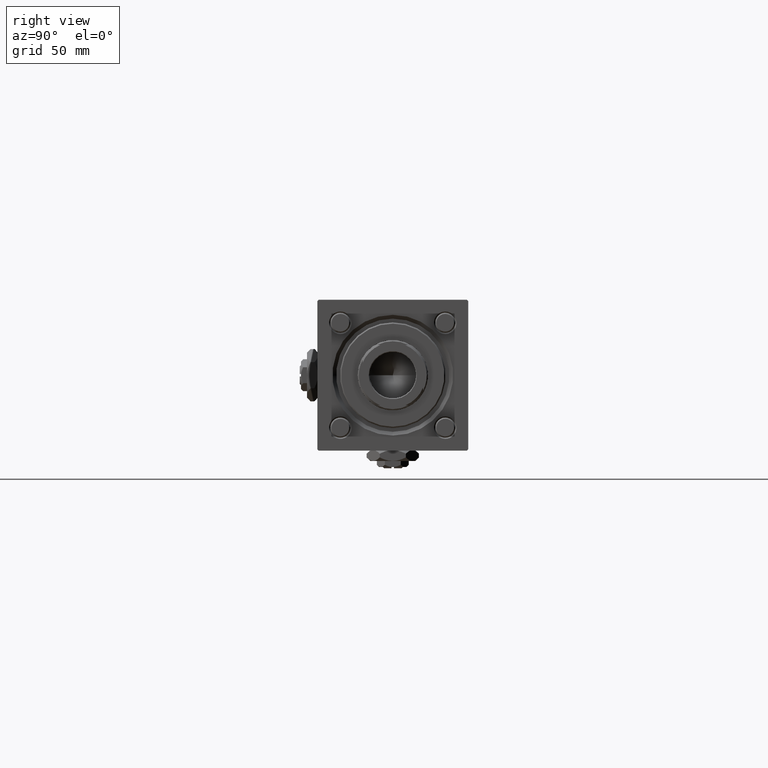
[diagram: clean part render]
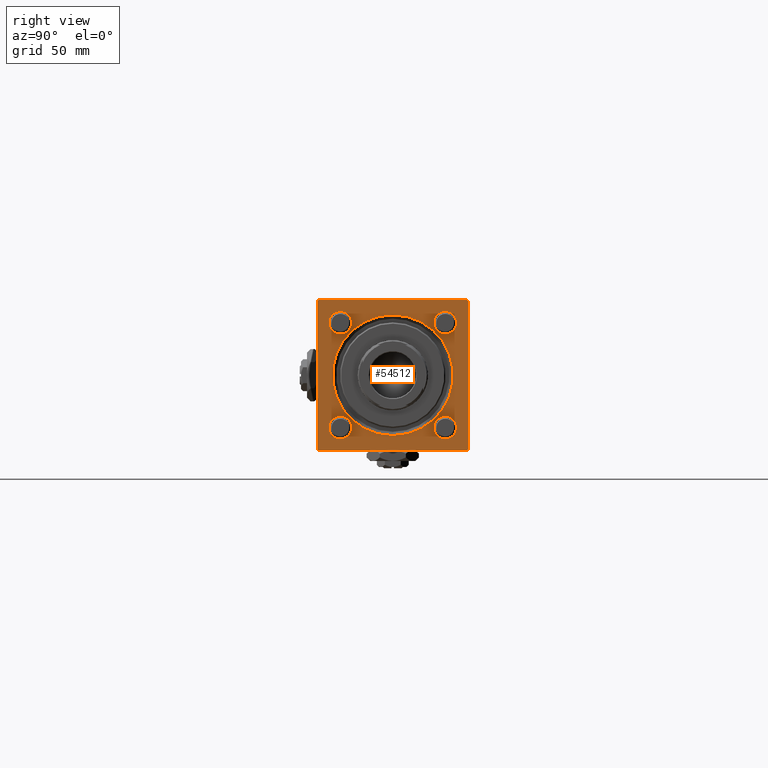
[diagram: same view with one face highlighted and labeled with its STEP entity id]
A machine part, right view. The second image highlights one B-rep face of the part: STEP entity #54512.
In plain terms, the highlighted planar face has unit normal (-1, 0, 0).
Its self-contained STEP definition (entity closure, byte-faithful):
#330 = DIRECTION ( 'NONE',  ( -1.000000000000000000, 0.000000000000000000, -0.000000000000000000 ) ) ;
#515 = VERTEX_POINT ( 'NONE', #48629 ) ;
#545 = CARTESIAN_POINT ( 'NONE',  ( 228.0000000000000000, 30.00000000000000000, 30.00000000000000000 ) ) ;
#1881 = EDGE_CURVE ( 'NONE', #13968, #4111, #19625, .T. ) ;
#2708 = DIRECTION ( 'NONE',  ( -1.000000000000000000, 0.000000000000000000, -0.000000000000000000 ) ) ;
#2725 = VERTEX_POINT ( 'NONE', #35676 ) ;
#3130 = DIRECTION ( 'NONE',  ( -1.000000000000000000, 0.000000000000000000, -0.000000000000000000 ) ) ;
#3354 = VERTEX_POINT ( 'NONE', #32952 ) ;
#3560 = VECTOR ( 'NONE', #31084, 1000.000000000000000 ) ;
#3709 = CARTESIAN_POINT ( 'NONE',  ( 228.0000000000000000, 20.84999999999999787, 25.35000000000000497 ) ) ;
#3905 = AXIS2_PLACEMENT_3D ( 'NONE', #6606, #38728, #29805 ) ;
#4111 = VERTEX_POINT ( 'NONE', #43663 ) ;
#4115 = DIRECTION ( 'NONE',  ( -1.000000000000000000, 0.000000000000000000, -0.000000000000000000 ) ) ;
#4321 = DIRECTION ( 'NONE',  ( 0.000000000000000000, 0.000000000000000000, 1.000000000000000000 ) ) ;
#4556 = EDGE_CURVE ( 'NONE', #49867, #6866, #8473, .T. ) ;
#5135 = CARTESIAN_POINT ( 'NONE',  ( 228.0000000000000000, -20.84999999999999076, 25.35000000000000853 ) ) ;
#5372 = DIRECTION ( 'NONE',  ( 0.000000000000000000, 0.000000000000000000, 1.000000000000000000 ) ) ;
#5391 = CARTESIAN_POINT ( 'NONE',  ( 228.0000000000000000, -30.00000000000000000, -29.49999999999998579 ) ) ;
#5453 = AXIS2_PLACEMENT_3D ( 'NONE', #44054, #2708, #35423 ) ;
#5646 = VERTEX_POINT ( 'NONE', #7571 ) ;
#5667 = CIRCLE ( 'NONE', #22779, 4.500000000000003553 ) ;
#6125 = CARTESIAN_POINT ( 'NONE',  ( 228.0000000000000000, -20.84999999999999076, -20.85000000000000497 ) ) ;
#6416 = DIRECTION ( 'NONE',  ( -1.000000000000000000, 0.000000000000000000, -0.000000000000000000 ) ) ;
#6606 = CARTESIAN_POINT ( 'NONE',  ( 228.0000000000000000, 20.84999999999999787, -20.85000000000000142 ) ) ;
#6713 = DIRECTION ( 'NONE',  ( 0.000000000000000000, 0.000000000000000000, 1.000000000000000000 ) ) ;
#6866 = VERTEX_POINT ( 'NONE', #14010 ) ;
#7085 = DIRECTION ( 'NONE',  ( 0.000000000000000000, 0.000000000000000000, -1.000000000000000000 ) ) ;
#7571 = CARTESIAN_POINT ( 'NONE',  ( 228.0000000000000000, -20.84999999999999076, 16.35000000000000142 ) ) ;
#8047 = ORIENTED_EDGE ( 'NONE', *, *, #41834, .T. ) ;
#8425 = EDGE_LOOP ( 'NONE', ( #30546, #32557 ) ) ;
#8473 = LINE ( 'NONE', #12923, #3560 ) ;
#8576 = CARTESIAN_POINT ( 'NONE',  ( 228.0000000000000000, 0.000000000000000000, 0.000000000000000000 ) ) ;
#8628 = AXIS2_PLACEMENT_3D ( 'NONE', #8576, #4115, #50231 ) ;
#8874 = FACE_BOUND ( 'NONE', #24887, .T. ) ;
#8895 = DIRECTION ( 'NONE',  ( 0.000000000000000000, 0.000000000000000000, -1.000000000000000000 ) ) ;
#9240 = CIRCLE ( 'NONE', #24432, 23.99999999999999645 ) ;
#9415 = VECTOR ( 'NONE', #19756, 1000.000000000000000 ) ;
#9615 = AXIS2_PLACEMENT_3D ( 'NONE', #34950, #3130, #11167 ) ;
#9963 = VERTEX_POINT ( 'NONE', #34828 ) ;
#10440 = EDGE_CURVE ( 'NONE', #9963, #57841, #24221, .T. ) ;
#10509 = DIRECTION ( 'NONE',  ( 0.000000000000000000, -1.000000000000000000, -1.156482317317871478E-16 ) ) ;
#10630 = CIRCLE ( 'NONE', #41042, 23.99999999999999645 ) ;
#10638 = VERTEX_POINT ( 'NONE', #5135 ) ;
#10765 = ORIENTED_EDGE ( 'NONE', *, *, #24808, .T. ) ;
#10802 = LINE ( 'NONE', #25073, #43310 ) ;
#11167 = DIRECTION ( 'NONE',  ( 0.000000000000000000, 0.000000000000000000, 1.000000000000000000 ) ) ;
#11946 = VECTOR ( 'NONE', #10509, 1000.000000000000000 ) ;
#12225 = EDGE_CURVE ( 'NONE', #52519, #57841, #18399, .T. ) ;
#12923 = CARTESIAN_POINT ( 'NONE',  ( 228.0000000000000000, -29.50000000000002487, -30.00000000000000000 ) ) ;
#12947 = CARTESIAN_POINT ( 'NONE',  ( 228.0000000000000000, 29.50000000000002487, 30.00000000000000000 ) ) ;
#13810 = CARTESIAN_POINT ( 'NONE',  ( 228.0000000000000000, -20.84999999999999076, 20.85000000000000497 ) ) ;
#13825 = ORIENTED_EDGE ( 'NONE', *, *, #49640, .T. ) ;
#13968 = VERTEX_POINT ( 'NONE', #40802 ) ;
#13976 = ORIENTED_EDGE ( 'NONE', *, *, #41294, .T. ) ;
#13979 = CIRCLE ( 'NONE', #5453, 4.500000000000003553 ) ;
#14010 = CARTESIAN_POINT ( 'NONE',  ( 228.0000000000000000, -29.50000000000002487, -30.00000000000000000 ) ) ;
#14185 = FACE_BOUND ( 'NONE', #14860, .T. ) ;
#14245 = ORIENTED_EDGE ( 'NONE', *, *, #1881, .T. ) ;
#14860 = EDGE_LOOP ( 'NONE', ( #31514, #8047 ) ) ;
#14869 = CARTESIAN_POINT ( 'NONE',  ( 228.0000000000000000, 0.000000000000000000, 0.000000000000000000 ) ) ;
#15847 = CARTESIAN_POINT ( 'NONE',  ( 228.0000000000000000, 30.00000000000000000, -29.99999999999999289 ) ) ;
#15885 = EDGE_CURVE ( 'NONE', #4111, #49867, #47567, .T. ) ;
#17914 = DIRECTION ( 'NONE',  ( -1.000000000000000000, 0.000000000000000000, -0.000000000000000000 ) ) ;
#18270 = ORIENTED_EDGE ( 'NONE', *, *, #57295, .T. ) ;
#18399 = LINE ( 'NONE', #545, #57081 ) ;
#18465 = CARTESIAN_POINT ( 'NONE',  ( 228.0000000000000000, 20.84999999999999787, 20.85000000000000142 ) ) ;
#19156 = DIRECTION ( 'NONE',  ( -1.000000000000000000, 0.000000000000000000, -0.000000000000000000 ) ) ;
#19625 = LINE ( 'NONE', #33017, #30988 ) ;
#19756 = DIRECTION ( 'NONE',  ( -0.000000000000000000, 0.7071067811865279218, 0.7071067811865672237 ) ) ;
#19899 = VERTEX_POINT ( 'NONE', #12947 ) ;
#20291 = ORIENTED_EDGE ( 'NONE', *, *, #49602, .F. ) ;
#21957 = CARTESIAN_POINT ( 'NONE',  ( 228.0000000000000000, 20.84999999999999787, -25.35000000000000497 ) ) ;
#22298 = DIRECTION ( 'NONE',  ( 0.000000000000000000, 0.000000000000000000, 1.000000000000000000 ) ) ;
#22674 = DIRECTION ( 'NONE',  ( 0.000000000000000000, 0.000000000000000000, 1.000000000000000000 ) ) ;
#22779 = AXIS2_PLACEMENT_3D ( 'NONE', #18465, #330, #36609 ) ;
#23579 = EDGE_CURVE ( 'NONE', #10638, #5646, #29153, .T. ) ;
#23801 = VERTEX_POINT ( 'NONE', #26555 ) ;
#23893 = DIRECTION ( 'NONE',  ( 0.000000000000000000, -1.000000000000000000, -1.156482317317871478E-16 ) ) ;
#24084 = EDGE_CURVE ( 'NONE', #34829, #3354, #13979, .T. ) ;
#24221 = LINE ( 'NONE', #38506, #9415 ) ;
#24432 = AXIS2_PLACEMENT_3D ( 'NONE', #35982, #54178, #22298 ) ;
#24759 = ORIENTED_EDGE ( 'NONE', *, *, #10440, .T. ) ;
#24808 = EDGE_CURVE ( 'NONE', #31853, #33940, #9240, .T. ) ;
#24887 = EDGE_LOOP ( 'NONE', ( #27747, #51025 ) ) ;
#25073 = CARTESIAN_POINT ( 'NONE',  ( 228.0000000000000000, 30.00000000000000000, 30.00000000000000000 ) ) ;
#25624 = EDGE_CURVE ( 'NONE', #515, #2725, #55903, .T. ) ;
#25629 = ORIENTED_EDGE ( 'NONE', *, *, #55160, .T. ) ;
#26269 = VERTEX_POINT ( 'NONE', #21957 ) ;
#26555 = CARTESIAN_POINT ( 'NONE',  ( 228.0000000000000000, 20.84999999999999787, -16.34999999999999787 ) ) ;
#27075 = DIRECTION ( 'NONE',  ( -1.000000000000000000, 0.000000000000000000, -0.000000000000000000 ) ) ;
#27598 = FACE_BOUND ( 'NONE', #30319, .T. ) ;
#27747 = ORIENTED_EDGE ( 'NONE', *, *, #34697, .T. ) ;
#27885 = DIRECTION ( 'NONE',  ( 0.000000000000000000, -0.7071067811865279218, 0.7071067811865671127 ) ) ;
#28352 = LINE ( 'NONE', #15847, #11946 ) ;
#28562 = DIRECTION ( 'NONE',  ( -0.000000000000000000, -0.7071067811865474617, -0.7071067811865474617 ) ) ;
#29153 = CIRCLE ( 'NONE', #30173, 4.500000000000003553 ) ;
#29805 = DIRECTION ( 'NONE',  ( 0.000000000000000000, 0.000000000000000000, 1.000000000000000000 ) ) ;
#30173 = AXIS2_PLACEMENT_3D ( 'NONE', #13810, #19156, #4321 ) ;
#30319 = EDGE_LOOP ( 'NONE', ( #13976, #10765 ) ) ;
#30539 = CIRCLE ( 'NONE', #33376, 4.500000000000003553 ) ;
#30546 = ORIENTED_EDGE ( 'NONE', *, *, #30856, .T. ) ;
#30856 = EDGE_CURVE ( 'NONE', #3354, #34829, #5667, .T. ) ;
#30988 = VECTOR ( 'NONE', #28562, 1000.000000000000114 ) ;
#31084 = DIRECTION ( 'NONE',  ( 0.000000000000000000, 0.7071067811865279218, -0.7071067811865671127 ) ) ;
#31514 = ORIENTED_EDGE ( 'NONE', *, *, #25624, .T. ) ;
#31853 = VERTEX_POINT ( 'NONE', #57679 ) ;
#32557 = ORIENTED_EDGE ( 'NONE', *, *, #24084, .T. ) ;
#32952 = CARTESIAN_POINT ( 'NONE',  ( 228.0000000000000000, 20.84999999999999787, 16.34999999999999787 ) ) ;
#33017 = CARTESIAN_POINT ( 'NONE',  ( 228.0000000000000000, -30.00000000000000000, 29.49999999999999289 ) ) ;
#33024 = DIRECTION ( 'NONE',  ( -1.000000000000000000, 0.000000000000000000, -0.000000000000000000 ) ) ;
#33052 = AXIS2_PLACEMENT_3D ( 'NONE', #40245, #17914, #22674 ) ;
#33140 = EDGE_LOOP ( 'NONE', ( #18270, #25629 ) ) ;
#33376 = AXIS2_PLACEMENT_3D ( 'NONE', #54191, #27075, #45525 ) ;
#33940 = VERTEX_POINT ( 'NONE', #39272 ) ;
#34697 = EDGE_CURVE ( 'NONE', #5646, #10638, #40027, .T. ) ;
#34828 = CARTESIAN_POINT ( 'NONE',  ( 228.0000000000000000, 29.50000000000000000, -29.99999999999999289 ) ) ;
#34829 = VERTEX_POINT ( 'NONE', #3709 ) ;
#34950 = CARTESIAN_POINT ( 'NONE',  ( 228.0000000000000000, -20.84999999999999076, 20.85000000000000497 ) ) ;
#35423 = DIRECTION ( 'NONE',  ( 0.000000000000000000, 0.000000000000000000, 1.000000000000000000 ) ) ;
#35676 = CARTESIAN_POINT ( 'NONE',  ( 228.0000000000000000, -20.84999999999999076, -16.35000000000000142 ) ) ;
#35859 = CARTESIAN_POINT ( 'NONE',  ( 228.0000000000000000, 30.00000000000000000, -29.49999999999995026 ) ) ;
#35982 = CARTESIAN_POINT ( 'NONE',  ( 228.0000000000000000, 0.000000000000000000, 0.000000000000000000 ) ) ;
#36065 = ORIENTED_EDGE ( 'NONE', *, *, #12225, .F. ) ;
#36181 = VECTOR ( 'NONE', #27885, 1000.000000000000000 ) ;
#36609 = DIRECTION ( 'NONE',  ( 0.000000000000000000, 0.000000000000000000, 1.000000000000000000 ) ) ;
#36814 = FACE_BOUND ( 'NONE', #8425, .T. ) ;
#38506 = CARTESIAN_POINT ( 'NONE',  ( 228.0000000000000000, 30.00000000000000000, -29.49999999999996447 ) ) ;
#38728 = DIRECTION ( 'NONE',  ( -1.000000000000000000, 0.000000000000000000, -0.000000000000000000 ) ) ;
#39272 = CARTESIAN_POINT ( 'NONE',  ( 228.0000000000000000, 0.000000000000000000, -23.99999999999999645 ) ) ;
#40027 = CIRCLE ( 'NONE', #9615, 4.500000000000003553 ) ;
#40111 = FACE_OUTER_BOUND ( 'NONE', #56094, .T. ) ;
#40245 = CARTESIAN_POINT ( 'NONE',  ( 228.0000000000000000, -20.84999999999999076, -20.85000000000000497 ) ) ;
#40644 = ORIENTED_EDGE ( 'NONE', *, *, #4556, .T. ) ;
#40802 = CARTESIAN_POINT ( 'NONE',  ( 228.0000000000000000, -29.50000000000000000, 29.99999999999999289 ) ) ;
#41042 = AXIS2_PLACEMENT_3D ( 'NONE', #14869, #33024, #5372 ) ;
#41286 = LINE ( 'NONE', #49657, #36181 ) ;
#41294 = EDGE_CURVE ( 'NONE', #33940, #31853, #10630, .T. ) ;
#41834 = EDGE_CURVE ( 'NONE', #2725, #515, #55297, .T. ) ;
#43310 = VECTOR ( 'NONE', #23893, 1000.000000000000000 ) ;
#43663 = CARTESIAN_POINT ( 'NONE',  ( 228.0000000000000000, -30.00000000000000000, 29.49999999999999289 ) ) ;
#44054 = CARTESIAN_POINT ( 'NONE',  ( 228.0000000000000000, 20.84999999999999787, 20.85000000000000142 ) ) ;
#45172 = FACE_BOUND ( 'NONE', #33140, .T. ) ;
#45525 = DIRECTION ( 'NONE',  ( 0.000000000000000000, 0.000000000000000000, 1.000000000000000000 ) ) ;
#45763 = PLANE ( 'NONE',  #8628 ) ;
#46688 = CIRCLE ( 'NONE', #3905, 4.500000000000003553 ) ;
#46752 = AXIS2_PLACEMENT_3D ( 'NONE', #6125, #6416, #6713 ) ;
#47567 = LINE ( 'NONE', #52042, #54764 ) ;
#48629 = CARTESIAN_POINT ( 'NONE',  ( 228.0000000000000000, -20.84999999999999076, -25.35000000000000853 ) ) ;
#48855 = ORIENTED_EDGE ( 'NONE', *, *, #15885, .T. ) ;
#49602 = EDGE_CURVE ( 'NONE', #9963, #6866, #28352, .T. ) ;
#49640 = EDGE_CURVE ( 'NONE', #19899, #13968, #10802, .T. ) ;
#49657 = CARTESIAN_POINT ( 'NONE',  ( 228.0000000000000000, 29.50000000000002487, 30.00000000000000000 ) ) ;
#49867 = VERTEX_POINT ( 'NONE', #5391 ) ;
#50231 = DIRECTION ( 'NONE',  ( -0.000000000000000000, 0.000000000000000000, 1.000000000000000000 ) ) ;
#51025 = ORIENTED_EDGE ( 'NONE', *, *, #23579, .T. ) ;
#52042 = CARTESIAN_POINT ( 'NONE',  ( 228.0000000000000000, -30.00000000000000000, 29.99999999999999289 ) ) ;
#52128 = ORIENTED_EDGE ( 'NONE', *, *, #54577, .T. ) ;
#52168 = CARTESIAN_POINT ( 'NONE',  ( 228.0000000000000000, 30.00000000000000000, 29.50000000000000000 ) ) ;
#52519 = VERTEX_POINT ( 'NONE', #52168 ) ;
#54178 = DIRECTION ( 'NONE',  ( -1.000000000000000000, 0.000000000000000000, -0.000000000000000000 ) ) ;
#54191 = CARTESIAN_POINT ( 'NONE',  ( 228.0000000000000000, 20.84999999999999787, -20.85000000000000142 ) ) ;
#54512 = ADVANCED_FACE ( 'NONE', ( #14185, #45172, #36814, #8874, #27598, #40111 ), #45763, .F. ) ;
#54577 = EDGE_CURVE ( 'NONE', #52519, #19899, #41286, .T. ) ;
#54764 = VECTOR ( 'NONE', #7085, 1000.000000000000000 ) ;
#55160 = EDGE_CURVE ( 'NONE', #23801, #26269, #46688, .T. ) ;
#55297 = CIRCLE ( 'NONE', #46752, 4.500000000000003553 ) ;
#55903 = CIRCLE ( 'NONE', #33052, 4.500000000000003553 ) ;
#56094 = EDGE_LOOP ( 'NONE', ( #48855, #40644, #20291, #24759, #36065, #52128, #13825, #14245 ) ) ;
#57081 = VECTOR ( 'NONE', #8895, 1000.000000000000000 ) ;
#57295 = EDGE_CURVE ( 'NONE', #26269, #23801, #30539, .T. ) ;
#57679 = CARTESIAN_POINT ( 'NONE',  ( 228.0000000000000000, 2.939152317953647500E-15, 23.99999999999999645 ) ) ;
#57841 = VERTEX_POINT ( 'NONE', #35859 ) ;